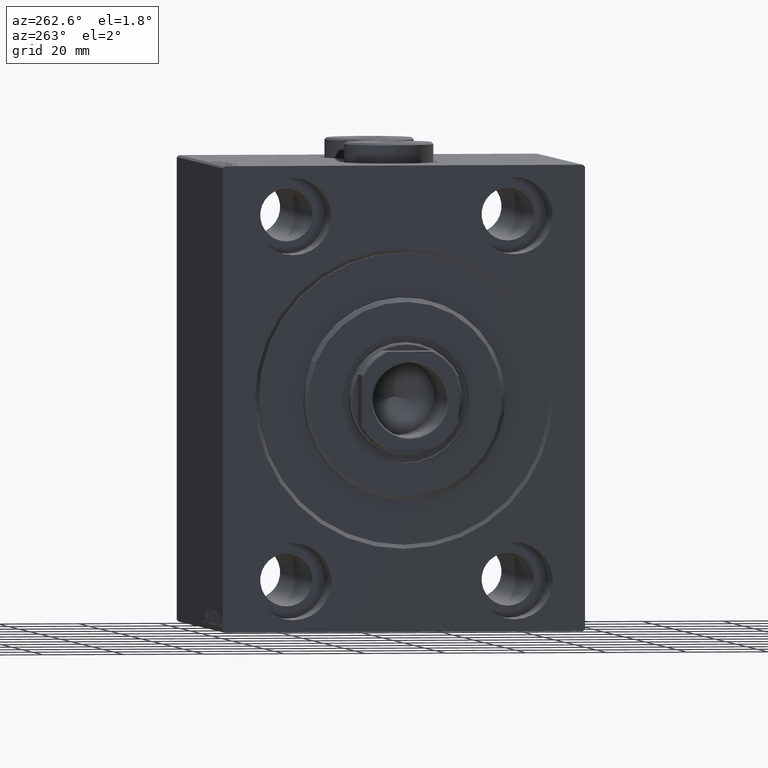
[diagram: clean part render]
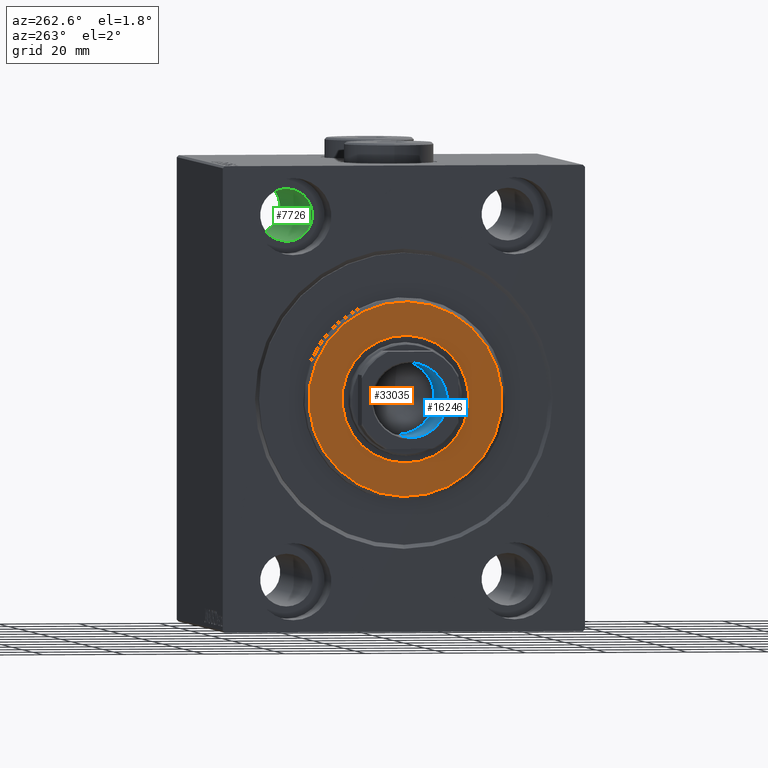
[diagram: same view with three faces highlighted in distinct colors, each labeled with its STEP entity id]
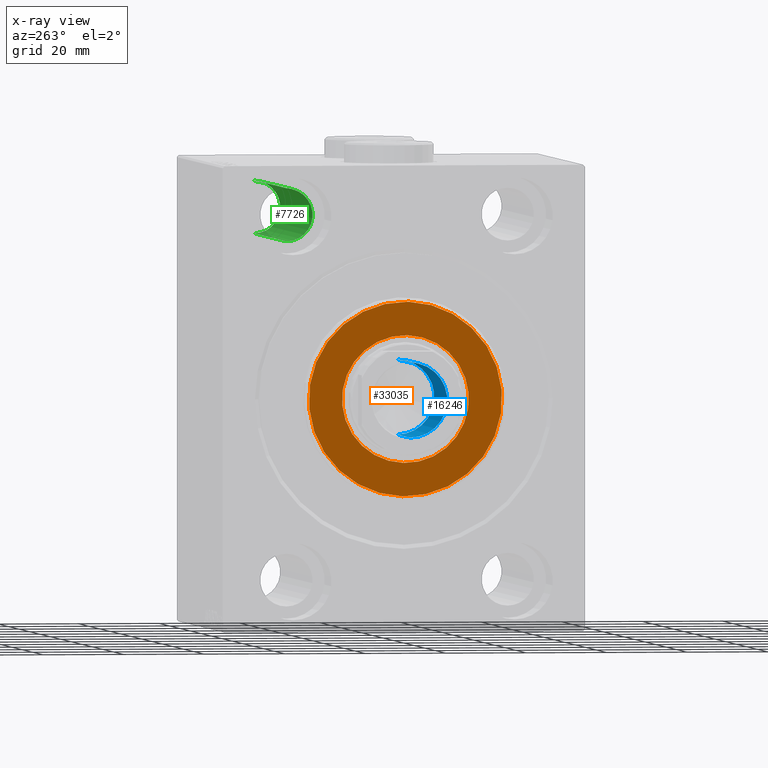
[diagram: x-ray of the same camera — body ghosted, the three highlighted faces saturated]
A machine part, auxiliary view with three faces highlighted in distinct colors.
The next image is the same camera in x-ray (body ghosted, the three faces saturated) — at least one of them is partly hidden behind the body in this view.
Their STEP definitions:

[orange] entity #33035 — the highlighted planar face has unit normal (-1, 0, 0).
#4714 = CARTESIAN_POINT ( 'NONE',  ( 3.000000000000000000, 3.000384657911017441E-15, -24.00000000000003553 ) ) ;
#6089 = FACE_BOUND ( 'NONE', #30655, .T. ) ;
#6148 = CIRCLE ( 'NONE', #11258, 24.00000000000003553 ) ;
#6179 = CIRCLE ( 'NONE', #42612, 15.75000000000000000 ) ;
#7346 = ORIENTED_EDGE ( 'NONE', *, *, #12254, .T. ) ;
#8802 = CARTESIAN_POINT ( 'NONE',  ( 3.000000000000000000, 0.000000000000000000, 0.000000000000000000 ) ) ;
#10315 = CARTESIAN_POINT ( 'NONE',  ( 3.000000000000000000, 1.928818708657080950E-15, -15.75000000000000000 ) ) ;
#11085 = DIRECTION ( 'NONE',  ( 0.000000000000000000, 0.000000000000000000, -1.000000000000000000 ) ) ;
#11258 = AXIS2_PLACEMENT_3D ( 'NONE', #19302, #15414, #43277 ) ;
#12254 = EDGE_CURVE ( 'NONE', #20489, #44968, #6148, .T. ) ;
#14155 = CIRCLE ( 'NONE', #39687, 24.00000000000003553 ) ;
#15372 = ORIENTED_EDGE ( 'NONE', *, *, #16378, .T. ) ;
#15414 = DIRECTION ( 'NONE',  ( 1.000000000000000000, -0.000000000000000000, 0.000000000000000000 ) ) ;
#15652 = VERTEX_POINT ( 'NONE', #10315 ) ;
#15894 = DIRECTION ( 'NONE',  ( 1.000000000000000000, -0.000000000000000000, 0.000000000000000000 ) ) ;
#16023 = ORIENTED_EDGE ( 'NONE', *, *, #25420, .T. ) ;
#16163 = AXIS2_PLACEMENT_3D ( 'NONE', #16571, #15894, #26842 ) ;
#16378 = EDGE_CURVE ( 'NONE', #22507, #15652, #6179, .T. ) ;
#16571 = CARTESIAN_POINT ( 'NONE',  ( 3.000000000000000000, 0.000000000000000000, 0.000000000000000000 ) ) ;
#19302 = CARTESIAN_POINT ( 'NONE',  ( 3.000000000000000000, 0.000000000000000000, 0.000000000000000000 ) ) ;
#19332 = FACE_OUTER_BOUND ( 'NONE', #20088, .T. ) ;
#19518 = CARTESIAN_POINT ( 'NONE',  ( 3.000000000000000000, 0.000000000000000000, 0.000000000000000000 ) ) ;
#19976 = DIRECTION ( 'NONE',  ( 1.000000000000000000, -0.000000000000000000, 0.000000000000000000 ) ) ;
#20088 = EDGE_LOOP ( 'NONE', ( #7346, #34234 ) ) ;
#20489 = VERTEX_POINT ( 'NONE', #36860 ) ;
#22507 = VERTEX_POINT ( 'NONE', #40846 ) ;
#22714 = DIRECTION ( 'NONE',  ( -1.000000000000000000, 0.000000000000000000, -0.000000000000000000 ) ) ;
#25420 = EDGE_CURVE ( 'NONE', #15652, #22507, #32129, .T. ) ;
#26842 = DIRECTION ( 'NONE',  ( 0.000000000000000000, 0.000000000000000000, -1.000000000000000000 ) ) ;
#28435 = CARTESIAN_POINT ( 'NONE',  ( 3.000000000000000000, 0.000000000000000000, 0.000000000000000000 ) ) ;
#30272 = PLANE ( 'NONE',  #16163 ) ;
#30655 = EDGE_LOOP ( 'NONE', ( #15372, #16023 ) ) ;
#32129 = CIRCLE ( 'NONE', #36502, 15.75000000000000000 ) ;
#33035 = ADVANCED_FACE ( 'NONE', ( #19332, #6089 ), #30272, .T. ) ;
#33445 = DIRECTION ( 'NONE',  ( 0.000000000000000000, 0.000000000000000000, -1.000000000000000000 ) ) ;
#34234 = ORIENTED_EDGE ( 'NONE', *, *, #40252, .T. ) ;
#36502 = AXIS2_PLACEMENT_3D ( 'NONE', #28435, #42366, #11085 ) ;
#36650 = DIRECTION ( 'NONE',  ( 0.000000000000000000, 0.000000000000000000, -1.000000000000000000 ) ) ;
#36860 = CARTESIAN_POINT ( 'NONE',  ( 3.000000000000000000, 0.000000000000000000, 24.00000000000003553 ) ) ;
#39687 = AXIS2_PLACEMENT_3D ( 'NONE', #19518, #19976, #33445 ) ;
#40252 = EDGE_CURVE ( 'NONE', #44968, #20489, #14155, .T. ) ;
#40846 = CARTESIAN_POINT ( 'NONE',  ( 3.000000000000000000, 0.000000000000000000, 15.75000000000000000 ) ) ;
#42366 = DIRECTION ( 'NONE',  ( -1.000000000000000000, 0.000000000000000000, -0.000000000000000000 ) ) ;
#42612 = AXIS2_PLACEMENT_3D ( 'NONE', #8802, #22714, #36650 ) ;
#43277 = DIRECTION ( 'NONE',  ( 0.000000000000000000, 0.000000000000000000, -1.000000000000000000 ) ) ;
#44968 = VERTEX_POINT ( 'NONE', #4714 ) ;

[blue] entity #16246 — the highlighted cylindrical surface (partial cylindrical patch) has radius 9.25 mm, axis along (-1, 0, 0).
#1898 = ORIENTED_EDGE ( 'NONE', *, *, #32289, .F. ) ;
#2545 = AXIS2_PLACEMENT_3D ( 'NONE', #41471, #13148, #3154 ) ;
#3055 = VECTOR ( 'NONE', #3366, 1000.000000000000000 ) ;
#3154 = DIRECTION ( 'NONE',  ( 1.000000000000000000, 0.000000000000000000, 0.000000000000000000 ) ) ;
#3366 = DIRECTION ( 'NONE',  ( -0.000000000000000000, -0.000000000000000000, 1.000000000000000000 ) ) ;
#3895 = CIRCLE ( 'NONE', #22094, 9.249999999999994671 ) ;
#6082 = ORIENTED_EDGE ( 'NONE', *, *, #34973, .F. ) ;
#6236 = VERTEX_POINT ( 'NONE', #34341 ) ;
#7248 = ORIENTED_EDGE ( 'NONE', *, *, #35782, .T. ) ;
#9529 = EDGE_LOOP ( 'NONE', ( #6082, #43842, #7248, #1898 ) ) ;
#9812 = CARTESIAN_POINT ( 'NONE',  ( 9.249999999999994671, 0.000000000000000000, 38.00000000000000000 ) ) ;
#11519 = CARTESIAN_POINT ( 'NONE',  ( -9.249999999999994671, 1.132798289211300909E-15, 62.69999999999997442 ) ) ;
#13148 = DIRECTION ( 'NONE',  ( -0.000000000000000000, -0.000000000000000000, 1.000000000000000000 ) ) ;
#13615 = FACE_OUTER_BOUND ( 'NONE', #9529, .T. ) ;
#14301 = VERTEX_POINT ( 'NONE', #9812 ) ;
#16246 = ADVANCED_FACE ( 'NONE', ( #13615 ), #27549, .F. ) ;
#17249 = LINE ( 'NONE', #23875, #3055 ) ;
#17330 = VERTEX_POINT ( 'NONE', #43721 ) ;
#17523 = DIRECTION ( 'NONE',  ( 1.000000000000000000, 0.000000000000000000, 0.000000000000000000 ) ) ;
#17669 = CIRCLE ( 'NONE', #44628, 9.249999999999994671 ) ;
#21188 = CARTESIAN_POINT ( 'NONE',  ( 0.000000000000000000, 0.000000000000000000, 62.69999999999997442 ) ) ;
#22094 = AXIS2_PLACEMENT_3D ( 'NONE', #21188, #39003, #17523 ) ;
#23875 = CARTESIAN_POINT ( 'NONE',  ( 9.249999999999994671, 0.000000000000000000, 63.00000000000000000 ) ) ;
#24820 = DIRECTION ( 'NONE',  ( -0.000000000000000000, -0.000000000000000000, 1.000000000000000000 ) ) ;
#26335 = DIRECTION ( 'NONE',  ( 1.000000000000000000, 0.000000000000000000, 0.000000000000000000 ) ) ;
#26789 = DIRECTION ( 'NONE',  ( -0.000000000000000000, -0.000000000000000000, 1.000000000000000000 ) ) ;
#27549 = CYLINDRICAL_SURFACE ( 'NONE', #2545, 9.249999999999994671 ) ;
#28027 = LINE ( 'NONE', #31680, #41669 ) ;
#31680 = CARTESIAN_POINT ( 'NONE',  ( -9.249999999999994671, 1.132798289211300909E-15, 63.00000000000000000 ) ) ;
#31981 = EDGE_CURVE ( 'NONE', #17330, #34913, #28027, .T. ) ;
#32289 = EDGE_CURVE ( 'NONE', #14301, #6236, #17249, .T. ) ;
#34341 = CARTESIAN_POINT ( 'NONE',  ( 9.249999999999994671, 0.000000000000000000, 62.69999999999997442 ) ) ;
#34913 = VERTEX_POINT ( 'NONE', #11519 ) ;
#34973 = EDGE_CURVE ( 'NONE', #17330, #14301, #17669, .T. ) ;
#35782 = EDGE_CURVE ( 'NONE', #34913, #6236, #3895, .T. ) ;
#39003 = DIRECTION ( 'NONE',  ( 0.000000000000000000, 0.000000000000000000, 1.000000000000000000 ) ) ;
#41471 = CARTESIAN_POINT ( 'NONE',  ( 0.000000000000000000, 0.000000000000000000, 63.00000000000000000 ) ) ;
#41669 = VECTOR ( 'NONE', #24820, 1000.000000000000000 ) ;
#43721 = CARTESIAN_POINT ( 'NONE',  ( -9.249999999999994671, 1.132798289211300909E-15, 38.00000000000000000 ) ) ;
#43842 = ORIENTED_EDGE ( 'NONE', *, *, #31981, .T. ) ;
#44146 = CARTESIAN_POINT ( 'NONE',  ( 0.000000000000000000, 0.000000000000000000, 38.00000000000000000 ) ) ;
#44628 = AXIS2_PLACEMENT_3D ( 'NONE', #44146, #26789, #26335 ) ;

[green] entity #7726 — the highlighted cylindrical surface (edge-blend (fillet) strip) has radius 6.5 mm, axis along (-1, -0, -0).
#3080 = CIRCLE ( 'NONE', #8888, 6.499999999999999112 ) ;
#5728 = VERTEX_POINT ( 'NONE', #24676 ) ;
#5937 = CARTESIAN_POINT ( 'NONE',  ( 88.00000000000000000, 27.50000000000001066, 51.50000000000000711 ) ) ;
#6168 = EDGE_CURVE ( 'NONE', #21635, #16032, #3080, .T. ) ;
#6644 = DIRECTION ( 'NONE',  ( -1.000000000000000000, -0.000000000000000000, -0.000000000000000000 ) ) ;
#7726 = ADVANCED_FACE ( 'NONE', ( #30818 ), #13472, .F. ) ;
#8434 = EDGE_LOOP ( 'NONE', ( #31784, #27327, #15871, #12511 ) ) ;
#8888 = AXIS2_PLACEMENT_3D ( 'NONE', #12046, #25521, #25975 ) ;
#10264 = CIRCLE ( 'NONE', #13894, 6.499999999999999112 ) ;
#12046 = CARTESIAN_POINT ( 'NONE',  ( 75.00000000000000000, 27.50000000000001066, 45.00000000000000711 ) ) ;
#12194 = DIRECTION ( 'NONE',  ( 0.000000000000000000, 0.000000000000000000, 1.000000000000000000 ) ) ;
#12511 = ORIENTED_EDGE ( 'NONE', *, *, #37891, .F. ) ;
#13330 = AXIS2_PLACEMENT_3D ( 'NONE', #27624, #6644, #27402 ) ;
#13447 = LINE ( 'NONE', #5937, #26475 ) ;
#13472 = CYLINDRICAL_SURFACE ( 'NONE', #13330, 6.499999999999999112 ) ;
#13894 = AXIS2_PLACEMENT_3D ( 'NONE', #32975, #25452, #12194 ) ;
#15871 = ORIENTED_EDGE ( 'NONE', *, *, #29325, .T. ) ;
#16032 = VERTEX_POINT ( 'NONE', #31713 ) ;
#21635 = VERTEX_POINT ( 'NONE', #34746 ) ;
#22313 = DIRECTION ( 'NONE',  ( -1.000000000000000000, -0.000000000000000000, -0.000000000000000000 ) ) ;
#23493 = DIRECTION ( 'NONE',  ( -1.000000000000000000, -0.000000000000000000, -0.000000000000000000 ) ) ;
#24676 = CARTESIAN_POINT ( 'NONE',  ( 12.99999999999999822, 27.50000000000001066, 38.50000000000000711 ) ) ;
#25452 = DIRECTION ( 'NONE',  ( -1.000000000000000000, 0.000000000000000000, 0.000000000000000000 ) ) ;
#25521 = DIRECTION ( 'NONE',  ( -1.000000000000000000, -0.000000000000000000, -0.000000000000000000 ) ) ;
#25975 = DIRECTION ( 'NONE',  ( 0.000000000000000000, 0.000000000000000000, -1.000000000000000000 ) ) ;
#26475 = VECTOR ( 'NONE', #23493, 1000.000000000000000 ) ;
#27327 = ORIENTED_EDGE ( 'NONE', *, *, #32063, .T. ) ;
#27402 = DIRECTION ( 'NONE',  ( 0.000000000000000000, 0.000000000000000000, 1.000000000000000000 ) ) ;
#27624 = CARTESIAN_POINT ( 'NONE',  ( 88.00000000000000000, 27.50000000000001066, 45.00000000000000711 ) ) ;
#29325 = EDGE_CURVE ( 'NONE', #5728, #29577, #10264, .T. ) ;
#29577 = VERTEX_POINT ( 'NONE', #32492 ) ;
#30818 = FACE_OUTER_BOUND ( 'NONE', #8434, .T. ) ;
#31713 = CARTESIAN_POINT ( 'NONE',  ( 75.00000000000000000, 27.50000000000001066, 51.50000000000000711 ) ) ;
#31784 = ORIENTED_EDGE ( 'NONE', *, *, #6168, .F. ) ;
#32063 = EDGE_CURVE ( 'NONE', #21635, #5728, #42404, .T. ) ;
#32492 = CARTESIAN_POINT ( 'NONE',  ( 12.99999999999999822, 27.50000000000001066, 51.50000000000000711 ) ) ;
#32975 = CARTESIAN_POINT ( 'NONE',  ( 12.99999999999999822, 27.50000000000001066, 45.00000000000000711 ) ) ;
#34373 = VECTOR ( 'NONE', #22313, 1000.000000000000000 ) ;
#34746 = CARTESIAN_POINT ( 'NONE',  ( 75.00000000000000000, 27.50000000000001066, 38.50000000000000711 ) ) ;
#37891 = EDGE_CURVE ( 'NONE', #16032, #29577, #13447, .T. ) ;
#39426 = CARTESIAN_POINT ( 'NONE',  ( 88.00000000000000000, 27.50000000000001066, 38.50000000000000711 ) ) ;
#42404 = LINE ( 'NONE', #39426, #34373 ) ;